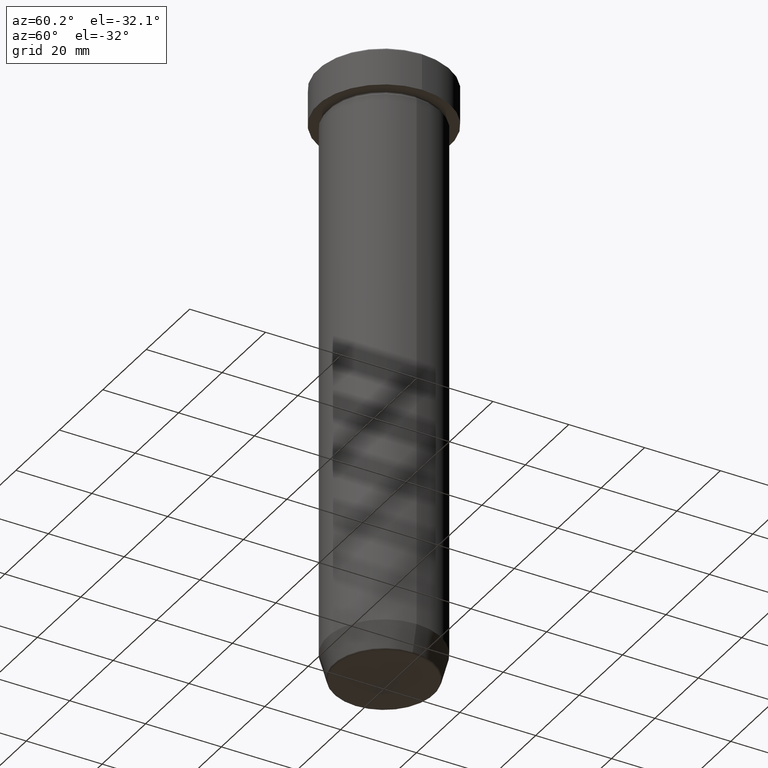
[diagram: clean part render]
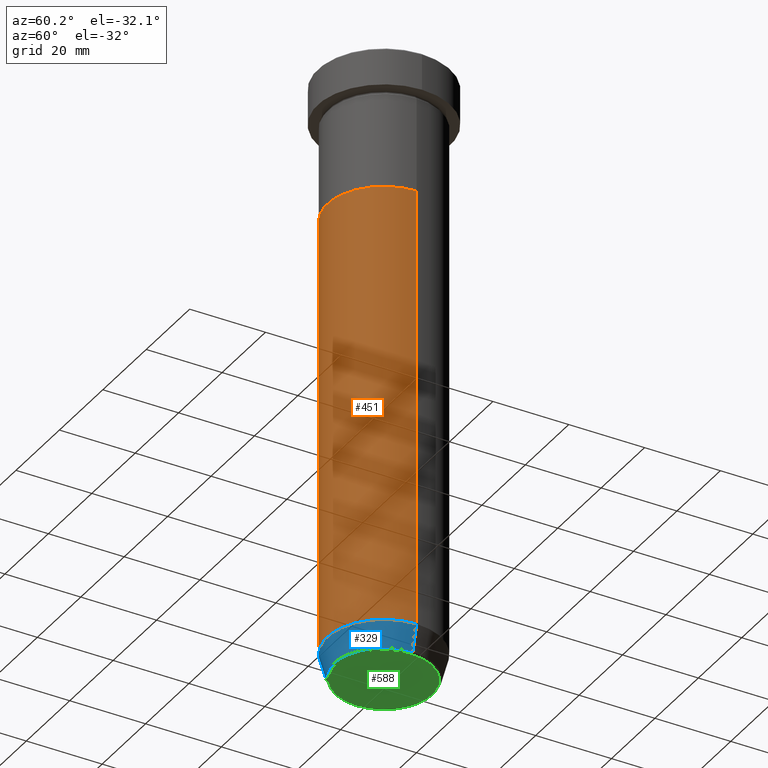
[diagram: same view with three faces highlighted in distinct colors, each labeled with its STEP entity id]
A machine part, auxiliary view with three faces highlighted in distinct colors.
Their STEP definitions:

[orange] entity #451 — the highlighted cylindrical surface (partial cylindrical patch) has radius 15 mm, axis along (-0, -0, 1).
#30 = ORIENTED_EDGE ( 'NONE', *, *, #520, .T. ) ;
#33 = VECTOR ( 'NONE', #545, 1000.000000000000000 ) ;
#39 = ORIENTED_EDGE ( 'NONE', *, *, #205, .F. ) ;
#40 = CARTESIAN_POINT ( 'NONE',  ( -15.00000000000000000, 1.836970198721029589E-15, -36.00000000000000000 ) ) ;
#47 = DIRECTION ( 'NONE',  ( -0.000000000000000000, -0.000000000000000000, 1.000000000000000000 ) ) ;
#52 = DIRECTION ( 'NONE',  ( 1.000000000000000000, 0.000000000000000000, 0.000000000000000000 ) ) ;
#63 = AXIS2_PLACEMENT_3D ( 'NONE', #379, #559, #466 ) ;
#84 = DIRECTION ( 'NONE',  ( -0.000000000000000000, -0.000000000000000000, 1.000000000000000000 ) ) ;
#94 = LINE ( 'NONE', #550, #33 ) ;
#97 = DIRECTION ( 'NONE',  ( -0.000000000000000000, -0.000000000000000000, 1.000000000000000000 ) ) ;
#136 = LINE ( 'NONE', #273, #575 ) ;
#157 = CARTESIAN_POINT ( 'NONE',  ( 15.00000000000000000, 0.000000000000000000, -36.00000000000000000 ) ) ;
#168 = CIRCLE ( 'NONE', #63, 15.00000000000000000 ) ;
#172 = CARTESIAN_POINT ( 'NONE',  ( 0.000000000000000000, 0.000000000000000000, 0.000000000000000000 ) ) ;
#205 = EDGE_CURVE ( 'NONE', #309, #246, #168, .T. ) ;
#221 = FACE_OUTER_BOUND ( 'NONE', #530, .T. ) ;
#233 = DIRECTION ( 'NONE',  ( 1.000000000000000000, 0.000000000000000000, 0.000000000000000000 ) ) ;
#246 = VERTEX_POINT ( 'NONE', #157 ) ;
#257 = EDGE_CURVE ( 'NONE', #556, #395, #283, .T. ) ;
#273 = CARTESIAN_POINT ( 'NONE',  ( 15.00000000000000000, 0.000000000000000000, 0.000000000000000000 ) ) ;
#278 = CARTESIAN_POINT ( 'NONE',  ( -15.00000000000000000, 1.836970198721029589E-15, -152.9999999999999716 ) ) ;
#283 = CIRCLE ( 'NONE', #343, 15.00000000000000000 ) ;
#308 = CARTESIAN_POINT ( 'NONE',  ( 15.00000000000000000, 0.000000000000000000, -152.9999999999999716 ) ) ;
#309 = VERTEX_POINT ( 'NONE', #40 ) ;
#343 = AXIS2_PLACEMENT_3D ( 'NONE', #561, #97, #52 ) ;
#379 = CARTESIAN_POINT ( 'NONE',  ( 0.000000000000000000, 0.000000000000000000, -36.00000000000000000 ) ) ;
#395 = VERTEX_POINT ( 'NONE', #308 ) ;
#445 = ORIENTED_EDGE ( 'NONE', *, *, #495, .F. ) ;
#451 = ADVANCED_FACE ( 'NONE', ( #221 ), #459, .T. ) ;
#459 = CYLINDRICAL_SURFACE ( 'NONE', #496, 15.00000000000000000 ) ;
#466 = DIRECTION ( 'NONE',  ( 1.000000000000000000, 0.000000000000000000, 0.000000000000000000 ) ) ;
#495 = EDGE_CURVE ( 'NONE', #556, #309, #94, .T. ) ;
#496 = AXIS2_PLACEMENT_3D ( 'NONE', #172, #84, #233 ) ;
#500 = ORIENTED_EDGE ( 'NONE', *, *, #257, .T. ) ;
#520 = EDGE_CURVE ( 'NONE', #395, #246, #136, .T. ) ;
#530 = EDGE_LOOP ( 'NONE', ( #445, #500, #30, #39 ) ) ;
#545 = DIRECTION ( 'NONE',  ( -0.000000000000000000, -0.000000000000000000, 1.000000000000000000 ) ) ;
#550 = CARTESIAN_POINT ( 'NONE',  ( -15.00000000000000000, 1.836970198721029589E-15, 0.000000000000000000 ) ) ;
#556 = VERTEX_POINT ( 'NONE', #278 ) ;
#559 = DIRECTION ( 'NONE',  ( -0.000000000000000000, -0.000000000000000000, 1.000000000000000000 ) ) ;
#561 = CARTESIAN_POINT ( 'NONE',  ( 0.000000000000000000, 0.000000000000000000, -152.9999999999999716 ) ) ;
#575 = VECTOR ( 'NONE', #47, 1000.000000000000000 ) ;

[blue] entity #329 — the highlighted conical surface has half-angle 15 deg.
#49 = AXIS2_PLACEMENT_3D ( 'NONE', #433, #398, #533 ) ;
#52 = DIRECTION ( 'NONE',  ( 1.000000000000000000, 0.000000000000000000, 0.000000000000000000 ) ) ;
#71 = EDGE_CURVE ( 'NONE', #171, #395, #370, .T. ) ;
#81 = CARTESIAN_POINT ( 'NONE',  ( -13.12435565298212836, 1.607270014129603399E-15, -160.0000000000000000 ) ) ;
#97 = DIRECTION ( 'NONE',  ( -0.000000000000000000, -0.000000000000000000, 1.000000000000000000 ) ) ;
#122 = DIRECTION ( 'NONE',  ( -0.000000000000000000, -0.000000000000000000, 1.000000000000000000 ) ) ;
#127 = ORIENTED_EDGE ( 'NONE', *, *, #257, .F. ) ;
#152 = CIRCLE ( 'NONE', #251, 13.22365507213718772 ) ;
#160 = FACE_OUTER_BOUND ( 'NONE', #176, .T. ) ;
#171 = VERTEX_POINT ( 'NONE', #290 ) ;
#176 = EDGE_LOOP ( 'NONE', ( #301, #380, #544, #127 ) ) ;
#219 = DIRECTION ( 'NONE',  ( -0.2588190451025210170, 3.169619151431768639E-17, 0.9659258262890680902 ) ) ;
#232 = VECTOR ( 'NONE', #382, 1000.000000000000114 ) ;
#251 = AXIS2_PLACEMENT_3D ( 'NONE', #435, #122, #256 ) ;
#256 = DIRECTION ( 'NONE',  ( -1.000000000000000000, 0.000000000000000000, 0.000000000000000000 ) ) ;
#257 = EDGE_CURVE ( 'NONE', #556, #395, #283, .T. ) ;
#276 = VECTOR ( 'NONE', #219, 1000.000000000000114 ) ;
#278 = CARTESIAN_POINT ( 'NONE',  ( -15.00000000000000000, 1.836970198721029589E-15, -152.9999999999999716 ) ) ;
#283 = CIRCLE ( 'NONE', #343, 15.00000000000000000 ) ;
#290 = CARTESIAN_POINT ( 'NONE',  ( 13.22365507213718949, 0.000000000000000000, -159.6294095225512422 ) ) ;
#301 = ORIENTED_EDGE ( 'NONE', *, *, #383, .F. ) ;
#304 = LINE ( 'NONE', #81, #276 ) ;
#308 = CARTESIAN_POINT ( 'NONE',  ( 15.00000000000000000, 0.000000000000000000, -152.9999999999999716 ) ) ;
#329 = ADVANCED_FACE ( 'NONE', ( #160 ), #551, .T. ) ;
#337 = CARTESIAN_POINT ( 'NONE',  ( -13.22365507213718949, 1.728200442216588386E-15, -159.6294095225512422 ) ) ;
#343 = AXIS2_PLACEMENT_3D ( 'NONE', #561, #97, #52 ) ;
#358 = EDGE_CURVE ( 'NONE', #384, #171, #152, .T. ) ;
#370 = LINE ( 'NONE', #376, #232 ) ;
#376 = CARTESIAN_POINT ( 'NONE',  ( 13.12435565298212836, 0.000000000000000000, -160.0000000000000000 ) ) ;
#380 = ORIENTED_EDGE ( 'NONE', *, *, #358, .T. ) ;
#382 = DIRECTION ( 'NONE',  ( 0.2588190451025210170, 0.000000000000000000, 0.9659258262890680902 ) ) ;
#383 = EDGE_CURVE ( 'NONE', #384, #556, #304, .T. ) ;
#384 = VERTEX_POINT ( 'NONE', #337 ) ;
#395 = VERTEX_POINT ( 'NONE', #308 ) ;
#398 = DIRECTION ( 'NONE',  ( -0.000000000000000000, -0.000000000000000000, 1.000000000000000000 ) ) ;
#433 = CARTESIAN_POINT ( 'NONE',  ( 0.000000000000000000, 0.000000000000000000, -160.0000000000000000 ) ) ;
#435 = CARTESIAN_POINT ( 'NONE',  ( 0.000000000000000000, 0.000000000000000000, -159.6294095225512422 ) ) ;
#533 = DIRECTION ( 'NONE',  ( 1.000000000000000000, 0.000000000000000000, 0.000000000000000000 ) ) ;
#544 = ORIENTED_EDGE ( 'NONE', *, *, #71, .T. ) ;
#551 = CONICAL_SURFACE ( 'NONE', #49, 13.12435565298212836, 0.2617993877991497409 ) ;
#556 = VERTEX_POINT ( 'NONE', #278 ) ;
#561 = CARTESIAN_POINT ( 'NONE',  ( 0.000000000000000000, 0.000000000000000000, -152.9999999999999716 ) ) ;

[green] entity #588 — the highlighted planar face has unit normal (0, -0, 1).
#2 = EDGE_CURVE ( 'NONE', #34, #524, #432, .T. ) ;
#34 = VERTEX_POINT ( 'NONE', #439 ) ;
#51 = DIRECTION ( 'NONE',  ( 1.000000000000000000, 0.000000000000000000, 0.000000000000000000 ) ) ;
#144 = CARTESIAN_POINT ( 'NONE',  ( 0.000000000000000000, 0.000000000000000000, -160.0000000000000000 ) ) ;
#151 = PLANE ( 'NONE',  #296 ) ;
#155 = AXIS2_PLACEMENT_3D ( 'NONE', #597, #218, #51 ) ;
#156 = ORIENTED_EDGE ( 'NONE', *, *, #2, .T. ) ;
#195 = FACE_OUTER_BOUND ( 'NONE', #243, .T. ) ;
#218 = DIRECTION ( 'NONE',  ( 0.000000000000000000, 0.000000000000000000, -1.000000000000000000 ) ) ;
#223 = ORIENTED_EDGE ( 'NONE', *, *, #247, .T. ) ;
#228 = CARTESIAN_POINT ( 'NONE',  ( -12.74069215899265295, 1.589857736427680246E-15, -160.0000000000000000 ) ) ;
#243 = EDGE_LOOP ( 'NONE', ( #156, #223 ) ) ;
#247 = EDGE_CURVE ( 'NONE', #524, #34, #507, .T. ) ;
#280 = CARTESIAN_POINT ( 'NONE',  ( 0.000000000000000000, 1.347111479062088839E-14, -160.0000000000000000 ) ) ;
#296 = AXIS2_PLACEMENT_3D ( 'NONE', #280, #555, #513 ) ;
#326 = DIRECTION ( 'NONE',  ( 0.000000000000000000, 0.000000000000000000, -1.000000000000000000 ) ) ;
#432 = CIRCLE ( 'NONE', #155, 12.74069215899265295 ) ;
#439 = CARTESIAN_POINT ( 'NONE',  ( 12.74069215899265295, 0.000000000000000000, -160.0000000000000000 ) ) ;
#453 = AXIS2_PLACEMENT_3D ( 'NONE', #144, #326, #567 ) ;
#507 = CIRCLE ( 'NONE', #453, 12.74069215899265295 ) ;
#513 = DIRECTION ( 'NONE',  ( 1.000000000000000000, 0.000000000000000000, 0.000000000000000000 ) ) ;
#524 = VERTEX_POINT ( 'NONE', #228 ) ;
#555 = DIRECTION ( 'NONE',  ( 0.000000000000000000, -0.000000000000000000, 1.000000000000000000 ) ) ;
#567 = DIRECTION ( 'NONE',  ( 1.000000000000000000, 0.000000000000000000, 0.000000000000000000 ) ) ;
#588 = ADVANCED_FACE ( 'NONE', ( #195 ), #151, .F. ) ;
#597 = CARTESIAN_POINT ( 'NONE',  ( 0.000000000000000000, 0.000000000000000000, -160.0000000000000000 ) ) ;